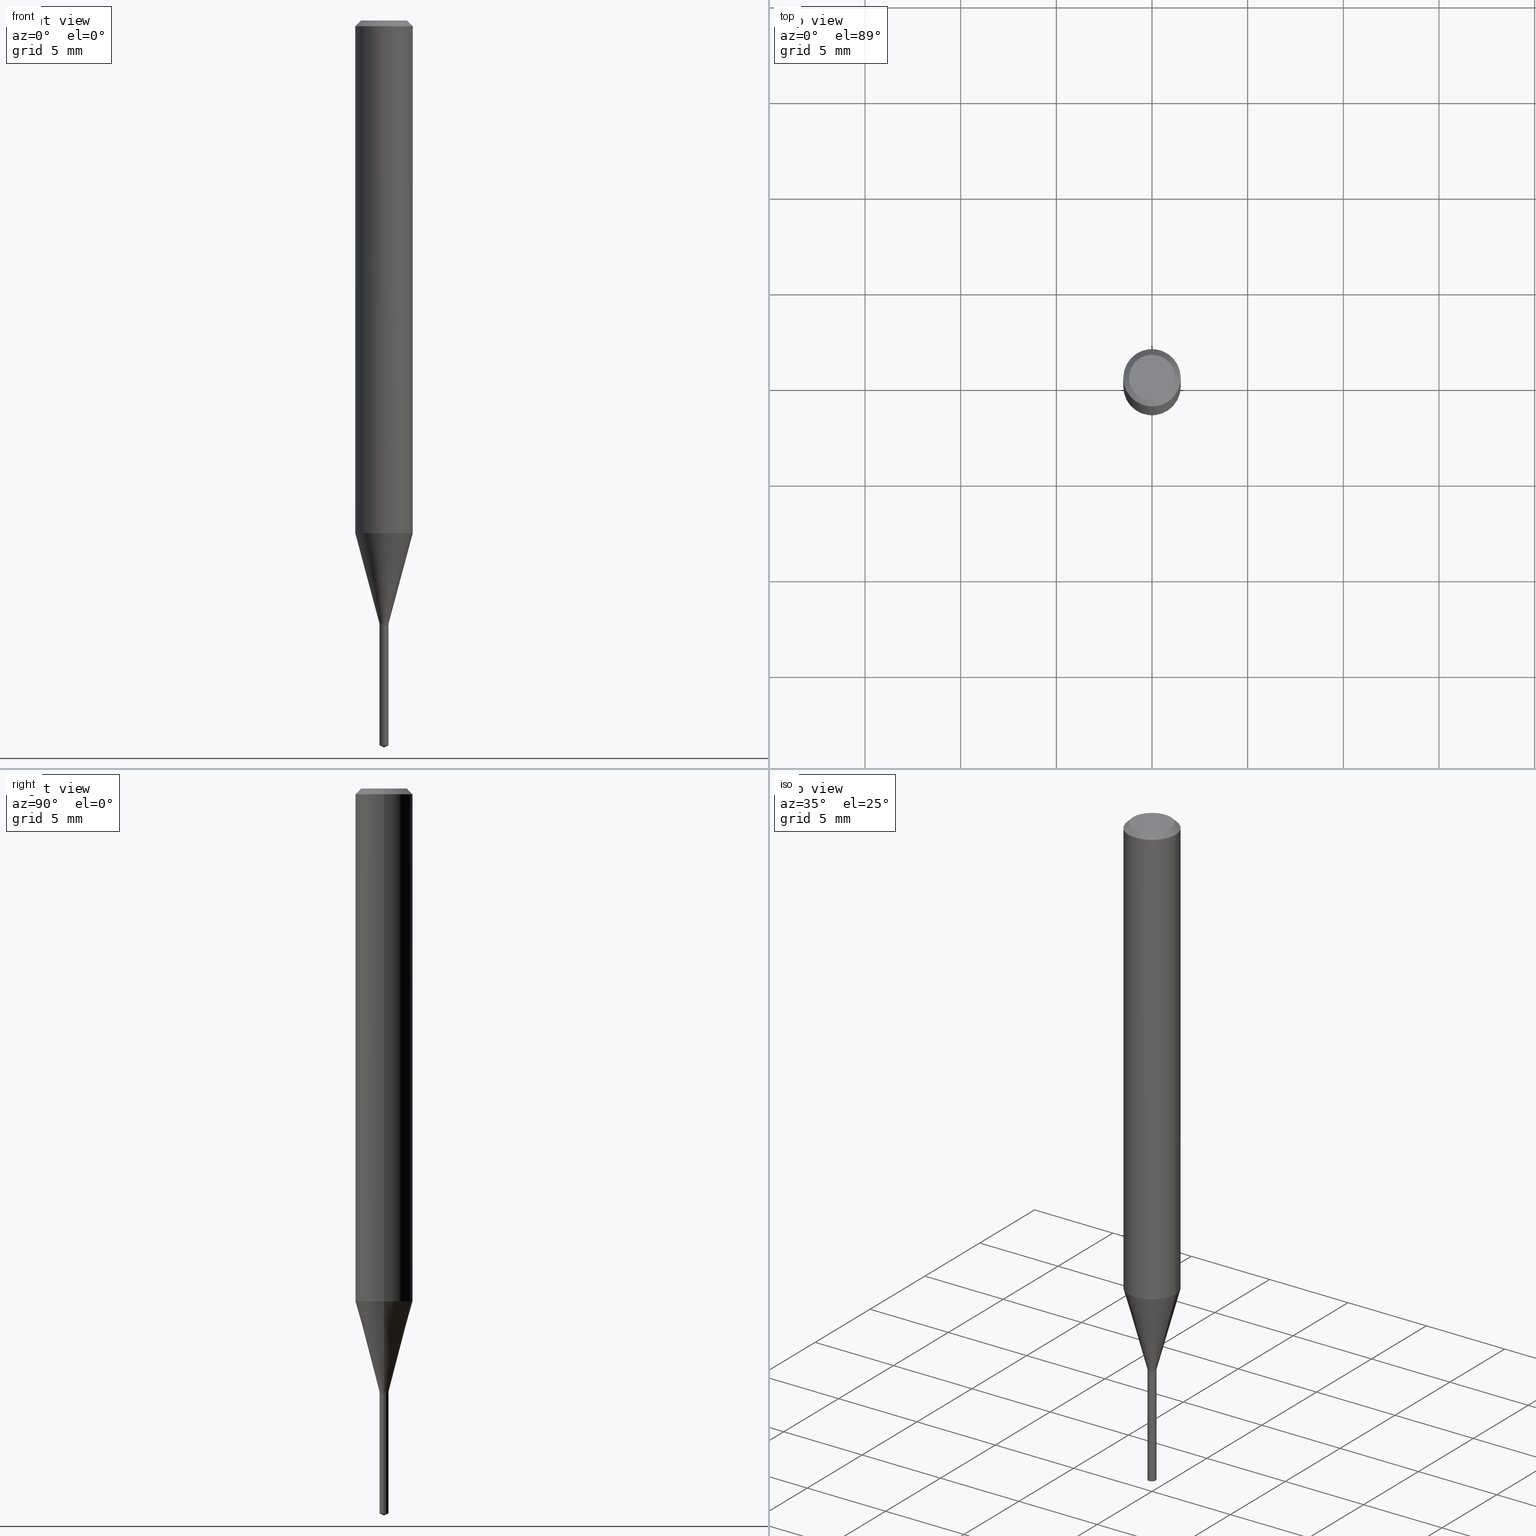
[diagram: canonical four-view strip — front | top / right | iso, engineering-drawing reading convention]
A machine part, canonical four-view strip (front | top / right | iso — engineering-drawing reading convention). The complete STEP part file that produces these views, byte-faithful:
ISO-10303-21;
HEADER;
FILE_DESCRIPTION (( 'STEP AP203' ),
    '1' );
FILE_NAME ('07766.STEP',
    '2024-04-24T02:34:44',
    ( '' ),
    ( '' ),
    'SwSTEP 2.0',
    'SolidWorks 2023',
    '' );
FILE_SCHEMA (( 'CONFIG_CONTROL_DESIGN' ));
ENDSEC;

DATA;
#1 = APPLICATION_PROTOCOL_DEFINITION ( 'international standard', 'config_control_design', 1994, #193 ) ;
#2 = AXIS2_PLACEMENT_3D ( 'NONE', #254, #369, #262 ) ;
#3 = AXIS2_PLACEMENT_3D ( 'NONE', #228, #41, #56 ) ;
#4 = EDGE_LOOP ( 'NONE', ( #162, #345, #50, #418 ) ) ;
#5 = CARTESIAN_POINT ( 'NONE',  ( -0.009249999999999999542, -4.272265786387857456E-15, -1.241299999999999848 ) ) ;
#6 = ORIENTED_EDGE ( 'NONE', *, *, #173, .F. ) ;
#7 = ORIENTED_EDGE ( 'NONE', *, *, #110, .F. ) ;
#8 = ADVANCED_FACE ( 'NONE', ( #394 ), #296, .T. ) ;
#9 = APPROVAL_STATUS ( 'not_yet_approved' ) ;
#10 = VERTEX_POINT ( 'NONE', #476 ) ;
#11 = AXIS2_PLACEMENT_3D ( 'NONE', #163, #364, #138 ) ;
#12 = DIRECTION ( 'NONE',  ( -2.445453018118844278E-29, 3.491503948252676363E-15, 1.000000000000000000 ) ) ;
#13 = ORIENTED_EDGE ( 'NONE', *, *, #278, .F. ) ;
#14 = EDGE_CURVE ( 'NONE', #437, #460, #58, .T. ) ;
#15 = DIRECTION ( 'NONE',  ( -2.438088387897960049E-29, 3.491481338843145188E-15, 1.000000000000000000 ) ) ;
#16 = FACE_OUTER_BOUND ( 'NONE', #379, .T. ) ;
#17 = CARTESIAN_POINT ( 'NONE',  ( 3.042407741774928155E-29, -4.343751933654757151E-15, -1.244099999999999984 ) ) ;
#18 = EDGE_LOOP ( 'NONE', ( #269, #57, #229, #434 ) ) ;
#19 = ORIENTED_EDGE ( 'NONE', *, *, #365, .F. ) ;
#20 = CARTESIAN_POINT ( 'NONE',  ( 4.132873053354867254E-48, -5.900647395337818946E-34, -1.690012582823346072E-19 ) ) ;
#21 = ORIENTED_EDGE ( 'NONE', *, *, #410, .F. ) ;
#22 = VECTOR ( 'NONE', #101, 39.37007874015748143 ) ;
#23 = CYLINDRICAL_SURFACE ( 'NONE', #462, 0.05905000000000006771 ) ;
#24 = AXIS2_PLACEMENT_3D ( 'NONE', #191, #146, #370 ) ;
#25 = DIRECTION ( 'NONE',  ( -2.445468806185136597E-29, 3.491481338843145583E-15, 1.000000000000000000 ) ) ;
#26 = DIRECTION ( 'NONE',  ( -0.2588190451025211836, 5.211531920934547886E-15, 0.9659258262890679791 ) ) ;
#27 = ADVANCED_FACE ( 'NONE', ( #330 ), #303, .T. ) ;
#28 = FACE_OUTER_BOUND ( 'NONE', #194, .T. ) ;
#29 = DIRECTION ( 'NONE',  ( 1.000000000000000000, 0.000000000000000000, 0.000000000000000000 ) ) ;
#30 = CARTESIAN_POINT ( 'NONE',  ( 0.05905000000000006771, -4.123439461173745257E-16, 2.879382386107503723E-30 ) ) ;
#31 = PERSON_AND_ORGANIZATION_ROLE ( 'creator' ) ;
#32 = AXIS2_PLACEMENT_3D ( 'NONE', #482, #15, #480 ) ;
#33 = CARTESIAN_POINT ( 'NONE',  ( 0.05904999999999999832, -4.535783407291118600E-16, -0.01181000000000007218 ) ) ;
#34 = EDGE_CURVE ( 'NONE', #427, #231, #97, .T. ) ;
#35 = CARTESIAN_POINT ( 'NONE',  ( 3.042407741774928155E-29, -4.343751933654757151E-15, -1.244099999999999984 ) ) ;
#36 = DIRECTION ( 'NONE',  ( 1.000000000000000000, -6.982962677686254089E-15, 0.000000000000000000 ) ) ;
#37 = CARTESIAN_POINT ( 'NONE',  ( 0.04724000000000000421, -3.852183633974369345E-16, -3.380025165621689721E-19 ) ) ;
#38 = ORIENTED_EDGE ( 'NONE', *, *, #381, .T. ) ;
#39 = CALENDAR_DATE ( 2024, 23, 4 ) ;
#40 = AXIS2_PLACEMENT_3D ( 'NONE', #20, #172, #328 ) ;
#41 = DIRECTION ( 'NONE',  ( -2.445453018118844559E-29, 3.491503948252676758E-15, 1.000000000000000000 ) ) ;
#42 = VECTOR ( 'NONE', #12, 39.37007874015748143 ) ;
#43 = ORIENTED_EDGE ( 'NONE', *, *, #410, .T. ) ;
#44 = EDGE_CURVE ( 'NONE', #237, #91, #255, .T. ) ;
#45 = ORIENTED_EDGE ( 'NONE', *, *, #221, .T. ) ;
#46 = DATE_TIME_ROLE ( 'classification_date' ) ;
#47 = ORIENTED_EDGE ( 'NONE', *, *, #344, .T. ) ;
#48 = PERSON_AND_ORGANIZATION_ROLE ( 'creator' ) ;
#49 = AXIS2_PLACEMENT_3D ( 'NONE', #338, #490, #107 ) ;
#50 = ORIENTED_EDGE ( 'NONE', *, *, #242, .F. ) ;
#51 = APPROVAL_PERSON_ORGANIZATION ( #52, #263, #274 ) ;
#52 = PERSON_AND_ORGANIZATION ( #279, #390 ) ;
#53 = EDGE_CURVE ( 'NONE', #91, #237, #246, .T. ) ;
#54 = DIRECTION ( 'NONE',  ( -2.445468806185136597E-29, 3.491481338843145583E-15, 1.000000000000000000 ) ) ;
#55 = DIRECTION ( 'NONE',  ( 6.982962677686265922E-15, 1.000000000000000000, -3.491503948252676363E-15 ) ) ;
#56 = DIRECTION ( 'NONE',  ( -6.982962677686266711E-15, -1.000000000000000000, 0.000000000000000000 ) ) ;
#57 = ORIENTED_EDGE ( 'NONE', *, *, #53, .T. ) ;
#58 = LINE ( 'NONE', #285, #358 ) ;
#59 = AXIS2_PLACEMENT_3D ( 'NONE', #398, #392, #430 ) ;
#60 = AXIS2_PLACEMENT_3D ( 'NONE', #179, #219, #126 ) ;
#61 = ORIENTED_EDGE ( 'NONE', *, *, #258, .F. ) ;
#62 = ADVANCED_FACE ( 'NONE', ( #355 ), #320, .F. ) ;
#63 = VERTEX_POINT ( 'NONE', #205 ) ;
#64 = DIRECTION ( 'NONE',  ( 1.000000000000000000, -6.982962677686306154E-15, 0.000000000000000000 ) ) ;
#65 = DIRECTION ( 'NONE',  ( 2.445468806185136597E-29, -3.491481338843145583E-15, -1.000000000000000000 ) ) ;
#66 = VECTOR ( 'NONE', #411, 39.37007874015748854 ) ;
#67 = CIRCLE ( 'NONE', #226, 0.05904999999999999832 ) ;
#68 = DIRECTION ( 'NONE',  ( 6.439704144417007476E-15, 0.9063077870366490485, 0.4226182617407009956 ) ) ;
#69 = ADVANCED_FACE ( 'NONE', ( #16 ), #469, .F. ) ;
#70 = FACE_OUTER_BOUND ( 'NONE', #346, .T. ) ;
#71 = CARTESIAN_POINT ( 'NONE',  ( -6.459240476856754120E-17, -0.009250000000004345024, -1.244099999999999984 ) ) ;
#72 = DIRECTION ( 'NONE',  ( 2.445468806185136597E-29, -3.491481338843145583E-15, -1.000000000000000000 ) ) ;
#73 = APPROVAL_STATUS ( 'not_yet_approved' ) ;
#74 = LINE ( 'NONE', #443, #238 ) ;
#75 = AXIS2_PLACEMENT_3D ( 'NONE', #93, #165, #334 ) ;
#76 = CARTESIAN_POINT ( 'NONE',  ( 0.000000000000000000, 0.000000000000000000, 0.000000000000000000 ) ) ;
#77 = DIRECTION ( 'NONE',  ( -2.445468806185136877E-29, 3.491481338843145188E-15, 1.000000000000000000 ) ) ;
#78 = ORIENTED_EDGE ( 'NONE', *, *, #350, .T. ) ;
#79 = APPROVAL_DATE_TIME ( #417, #82 ) ;
#80 = ORIENTED_EDGE ( 'NONE', *, *, #221, .F. ) ;
#81 = PERSON_AND_ORGANIZATION_ROLE ( 'design_owner' ) ;
#82 = APPROVAL ( #73, 'UNSPECIFIED' ) ;
#83 = VECTOR ( 'NONE', #298, 39.37007874015748143 ) ;
#84 = ORIENTED_EDGE ( 'NONE', *, *, #489, .T. ) ;
#85 = ORIENTED_EDGE ( 'NONE', *, *, #344, .F. ) ;
#86 = EDGE_LOOP ( 'NONE', ( #234, #170 ) ) ;
#87 = ADVANCED_FACE ( 'NONE', ( #440 ), #100, .T. ) ;
#88 = PERSON_AND_ORGANIZATION_ROLE ( 'classification_officer' ) ;
#89 = DIRECTION ( 'NONE',  ( -2.445468806185136597E-29, 3.491481338843145583E-15, 1.000000000000000000 ) ) ;
#90 = CIRCLE ( 'NONE', #3, 0.009249999999999999542 ) ;
#91 = VERTEX_POINT ( 'NONE', #148 ) ;
#92 = COORDINATED_UNIVERSAL_TIME_OFFSET ( 5, 0, .BEHIND. ) ;
#93 = CARTESIAN_POINT ( 'NONE',  ( 8.265746106709734507E-48, -1.180129479067563789E-33, -3.380025165646692144E-19 ) ) ;
#94 = EDGE_LOOP ( 'NONE', ( #155, #212, #436 ) ) ;
#95 = ORIENTED_EDGE ( 'NONE', *, *, #34, .F. ) ;
#96 = EDGE_CURVE ( 'NONE', #116, #245, #225, .T. ) ;
#97 = LINE ( 'NONE', #208, #421 ) ;
#98 = CONICAL_SURFACE ( 'NONE', #322, 0.05904999999999999832, 0.7853981633974452814 ) ;
#99 = CIRCLE ( 'NONE', #75, 0.04724000000000000421 ) ;
#100 = CYLINDRICAL_SURFACE ( 'NONE', #158, 0.009249999999999999542 ) ;
#101 = DIRECTION ( 'NONE',  ( -0.7071067811866191821, 7.493145998870612907E-15, 0.7071067811864758523 ) ) ;
#102 = CARTESIAN_POINT ( 'NONE',  ( 3.042407741774928155E-29, -4.343751933654757151E-15, -1.244099999999999984 ) ) ;
#103 = DIRECTION ( 'NONE',  ( -2.445453018118844559E-29, 3.491503948252676758E-15, 1.000000000000000000 ) ) ;
#104 = CARTESIAN_POINT ( 'NONE',  ( 0.008749999999999999098, -4.404852857084512143E-15, -1.244099999999999984 ) ) ;
#105 = VECTOR ( 'NONE', #373, 39.37007874015748143 ) ;
#106 = DIRECTION ( 'NONE',  ( 1.000000000000000000, -6.982962677686264344E-15, 0.000000000000000000 ) ) ;
#107 = DIRECTION ( 'NONE',  ( 1.000000000000000000, -6.982962677686266711E-15, 4.876176775795935232E-29 ) ) ;
#108 = DIRECTION ( 'NONE',  ( -2.445468806185136597E-29, 3.491481338843145583E-15, 1.000000000000000000 ) ) ;
#109 =( CONVERSION_BASED_UNIT ( 'INCH', #339 ) LENGTH_UNIT ( ) NAMED_UNIT ( #145 ) );
#110 = EDGE_CURVE ( 'NONE', #63, #460, #215, .T. ) ;
#111 = DIRECTION ( 'NONE',  ( -6.982962677686268288E-15, -1.000000000000000000, 3.520397390770518557E-15 ) ) ;
#112 = LINE ( 'NONE', #299, #366 ) ;
#113 = CIRCLE ( 'NONE', #247, 0.04724000000000000421 ) ;
#114 = CC_DESIGN_SECURITY_CLASSIFICATION ( #305, ( #342 ) ) ;
#115 = DIRECTION ( 'NONE',  ( 0.000000000000000000, 0.000000000000000000, 1.000000000000000000 ) ) ;
#116 = VERTEX_POINT ( 'NONE', #104 ) ;
#117 = EDGE_CURVE ( 'NONE', #91, #249, #74, .T. ) ;
#118 = ORIENTED_EDGE ( 'NONE', *, *, #53, .F. ) ;
#119 = AXIS2_PLACEMENT_3D ( 'NONE', #177, #243, #429 ) ;
#120 = ORIENTED_EDGE ( 'NONE', *, *, #375, .T. ) ;
#121 = ADVANCED_FACE ( 'NONE', ( #28 ), #396, .T. ) ;
#122 = ORIENTED_EDGE ( 'NONE', *, *, #365, .T. ) ;
#123 = DIRECTION ( 'NONE',  ( 1.000000000000000000, -6.982962677686250144E-15, 0.000000000000000000 ) ) ;
#124 = ORIENTED_EDGE ( 'NONE', *, *, #332, .T. ) ;
#125 = DESIGN_CONTEXT ( 'detailed design', #475, 'design' ) ;
#126 = DIRECTION ( 'NONE',  ( 1.000000000000000000, -6.982962677686266711E-15, 0.000000000000000000 ) ) ;
#127 = AXIS2_PLACEMENT_3D ( 'NONE', #403, #65, #367 ) ;
#128 = CC_DESIGN_APPROVAL ( #263, ( #342 ) ) ;
#129 = ORIENTED_EDGE ( 'NONE', *, *, #470, .F. ) ;
#130 = DIRECTION ( 'NONE',  ( -6.982962677686265133E-15, -1.000000000000000000, 0.000000000000000000 ) ) ;
#131 = ADVANCED_FACE ( 'NONE', ( #336 ), #98, .T. ) ;
#132 = ORIENTED_EDGE ( 'NONE', *, *, #426, .T. ) ;
#133 = ORIENTED_EDGE ( 'NONE', *, *, #34, .T. ) ;
#134 = CONICAL_SURFACE ( 'NONE', #414, 0.009249999999999999542, 0.2617993877991499074 ) ;
#135 = CARTESIAN_POINT ( 'NONE',  ( 3.041185007371835914E-29, -4.342006192985336437E-15, -1.243600000000000039 ) ) ;
#136 = ADVANCED_FACE ( 'NONE', ( #406 ), #286, .T. ) ;
#137 = CARTESIAN_POINT ( 'NONE',  ( 3.648113817743311511E-29, -5.208550864591106219E-15, -1.491786654162066128 ) ) ;
#138 = DIRECTION ( 'NONE',  ( 1.000000000000000000, -6.982962677686264344E-15, 0.000000000000000000 ) ) ;
#139 = FACE_OUTER_BOUND ( 'NONE', #277, .T. ) ;
#140 = CARTESIAN_POINT ( 'NONE',  ( -0.05904999999999999832, -1.443572999611519884E-15, -0.01181000000000007218 ) ) ;
#141 = AXIS2_PLACEMENT_3D ( 'NONE', #239, #404, #106 ) ;
#142 = DIRECTION ( 'NONE',  ( -0.7071067811865453523, 2.468850131082234184E-15, -0.7071067811865496822 ) ) ;
#143 = CARTESIAN_POINT ( 'NONE',  ( -0.05905000000000006771, 4.195754854663396409E-16, -2.904631170795525045E-30 ) ) ;
#144 = CC_DESIGN_DATE_AND_TIME_ASSIGNMENT ( #463, #46, ( #305 ) ) ;
#145 = DIMENSIONAL_EXPONENTS ( 1.000000000000000000, 0.000000000000000000, 0.000000000000000000, 0.000000000000000000, 0.000000000000000000, 0.000000000000000000, 0.000000000000000000 ) ;
#146 = DIRECTION ( 'NONE',  ( -2.445468806185136597E-29, 3.491481338843145583E-15, 1.000000000000000000 ) ) ;
#147 = ADVANCED_FACE ( 'NONE', ( #70 ), #449, .T. ) ;
#148 = CARTESIAN_POINT ( 'NONE',  ( 6.572520305784574876E-17, 0.009249999999994791902, -1.491786654162066128 ) ) ;
#149 = CARTESIAN_POINT ( 'NONE',  ( 0.000000000000000000, 0.000000000000000000, 0.000000000000000000 ) ) ;
#150 = CARTESIAN_POINT ( 'NONE',  ( 3.042407741774928155E-29, -4.343751933654757151E-15, -1.244099999999999984 ) ) ;
#151 = AXIS2_PLACEMENT_3D ( 'NONE', #356, #103, #402 ) ;
#152 = ADVANCED_FACE ( 'NONE', ( #261 ), #134, .T. ) ;
#153 = VERTEX_POINT ( 'NONE', #178 ) ;
#154 = DIRECTION ( 'NONE',  ( -2.445453018118844559E-29, 3.491503948252676758E-15, 1.000000000000000000 ) ) ;
#155 = ORIENTED_EDGE ( 'NONE', *, *, #381, .F. ) ;
#156 = APPROVAL_DATE_TIME ( #348, #220 ) ;
#157 = EDGE_LOOP ( 'NONE', ( #95, #385, #362, #124 ) ) ;
#158 = AXIS2_PLACEMENT_3D ( 'NONE', #102, #290, #371 ) ;
#159 = ORIENTED_EDGE ( 'NONE', *, *, #250, .F. ) ;
#160 = CC_DESIGN_PERSON_AND_ORGANIZATION_ASSIGNMENT ( #321, #48, ( #342 ) ) ;
#161 = LINE ( 'NONE', #466, #329 ) ;
#162 = ORIENTED_EDGE ( 'NONE', *, *, #44, .T. ) ;
#163 = CARTESIAN_POINT ( 'NONE',  ( 2.581055060233824275E-29, -3.685062575543982998E-15, -1.055443869783069699 ) ) ;
#164 = DIRECTION ( 'NONE',  ( 0.7071067811865453523, -7.319954787623248157E-15, -0.7071067811865496822 ) ) ;
#165 = DIRECTION ( 'NONE',  ( -2.445468806185136597E-29, 3.491481338843145583E-15, 1.000000000000000000 ) ) ;
#166 = CLOSED_SHELL ( 'NONE', ( #27, #136, #361, #300, #147, #189, #152, #199, #131, #69, #400, #8 ) ) ;
#167 = CIRCLE ( 'NONE', #397, 0.008749999999999999098 ) ;
#168 = ORIENTED_EDGE ( 'NONE', *, *, #211, .F. ) ;
#169 = PRODUCT_DEFINITION ( 'UNKNOWN', '', #342, #125 ) ;
#170 = ORIENTED_EDGE ( 'NONE', *, *, #293, .F. ) ;
#171 = CC_DESIGN_PERSON_AND_ORGANIZATION_ASSIGNMENT ( #203, #88, ( #305 ) ) ;
#172 = DIRECTION ( 'NONE',  ( 2.438088387897960049E-29, -3.491481338843145188E-15, -1.000000000000000000 ) ) ;
#173 = EDGE_CURVE ( 'NONE', #116, #268, #413, .T. ) ;
#174 = DIRECTION ( 'NONE',  ( -2.445468806185136597E-29, 3.491481338843145583E-15, 1.000000000000000000 ) ) ;
#175 = AXIS2_PLACEMENT_3D ( 'NONE', #180, #335, #445 ) ;
#176 = LOCAL_TIME ( 22, 34, 44.00000000000000000, #92 ) ;
#177 = CARTESIAN_POINT ( 'NONE',  ( 3.041185007371835914E-29, -4.342006192985336437E-15, -1.243600000000000039 ) ) ;
#178 = CARTESIAN_POINT ( 'NONE',  ( -0.05905000000000013710, -3.265487090077642716E-15, -1.055443869783069699 ) ) ;
#179 = CARTESIAN_POINT ( 'NONE',  ( 2.888098660104664204E-31, -4.123439461173780263E-17, -0.01181000000000007218 ) ) ;
#180 = CARTESIAN_POINT ( 'NONE',  ( 3.042407741774928155E-29, -4.343751933654757151E-15, -1.244099999999999984 ) ) ;
#181 = FACE_OUTER_BOUND ( 'NONE', #18, .T. ) ;
#182 = DIRECTION ( 'NONE',  ( 1.000000000000000000, -6.982962677686266711E-15, 4.876176775795935232E-29 ) ) ;
#183 = EDGE_CURVE ( 'NONE', #63, #313, #333, .T. ) ;
#184 = CIRCLE ( 'NONE', #281, 0.009249999999999999542 ) ;
#185 = CARTESIAN_POINT ( 'NONE',  ( -9.261901597635378744E-28, 1.322371744356641908E-13, 37.87397874015748300 ) ) ;
#186 = CARTESIAN_POINT ( 'NONE',  ( -0.009249999999999999542, -4.272265786387857456E-15, -1.243600000000000039 ) ) ;
#187 = CARTESIAN_POINT ( 'NONE',  ( 0.008749999999999999098, -4.404852857084512143E-15, -1.244099999999999984 ) ) ;
#188 =( NAMED_UNIT ( * ) PLANE_ANGLE_UNIT ( ) SI_UNIT ( $, .RADIAN. ) );
#189 = ADVANCED_FACE ( 'NONE', ( #139 ), #452, .T. ) ;
#190 = VERTEX_POINT ( 'NONE', #481 ) ;
#191 = CARTESIAN_POINT ( 'NONE',  ( 3.035560429117610036E-29, -4.333975785905995943E-15, -1.241299999999999848 ) ) ;
#192 = LOCAL_TIME ( 22, 34, 44.00000000000000000, #232 ) ;
#193 = APPLICATION_CONTEXT ( 'configuration controlled 3d designs of mechanical parts and assemblies' ) ;
#194 = EDGE_LOOP ( 'NONE', ( #13, #38, #118 ) ) ;
#195 = CALENDAR_DATE ( 2024, 23, 4 ) ;
#196 = ORIENTED_EDGE ( 'NONE', *, *, #293, .T. ) ;
#197 = APPROVAL_ROLE ( '' ) ;
#198 = ORIENTED_EDGE ( 'NONE', *, *, #173, .T. ) ;
#199 = ADVANCED_FACE ( 'NONE', ( #340 ), #222, .T. ) ;
#200 = PERSON_AND_ORGANIZATION_ROLE ( 'design_supplier' ) ;
#201 = AXIS2_PLACEMENT_3D ( 'NONE', #149, #115, #29 ) ;
#202 = ORIENTED_EDGE ( 'NONE', *, *, #250, .T. ) ;
#203 = PERSON_AND_ORGANIZATION ( #279, #390 ) ;
#204 = DIRECTION ( 'NONE',  ( 1.000000000000000000, -6.982962677686266711E-15, 4.876185090822587894E-29 ) ) ;
#205 = CARTESIAN_POINT ( 'NONE',  ( 0.009249999999999999542, -4.398568190674593941E-15, -1.241299999999999848 ) ) ;
#206 = DATE_AND_TIME ( #39, #297 ) ;
#207 = CARTESIAN_POINT ( 'NONE',  ( 8.265746106709734507E-48, -1.180129479067563789E-33, -3.380025165646692144E-19 ) ) ;
#208 = CARTESIAN_POINT ( 'NONE',  ( 0.05904999999999999832, -4.463468013801466955E-16, -0.01181000000000007218 ) ) ;
#209 = ORIENTED_EDGE ( 'NONE', *, *, #464, .T. ) ;
#210 = CARTESIAN_POINT ( 'NONE',  ( 3.042407741774928155E-29, -4.343751933654757151E-15, -1.244099999999999984 ) ) ;
#211 = EDGE_CURVE ( 'NONE', #313, #231, #488, .T. ) ;
#212 = ORIENTED_EDGE ( 'NONE', *, *, #278, .T. ) ;
#213 = DIRECTION ( 'NONE',  ( -6.328713451373352024E-15, -0.9063077870366461619, 0.4226182617407073239 ) ) ;
#214 = DIRECTION ( 'NONE',  ( -2.445468806185136597E-29, 3.491481338843145583E-15, 1.000000000000000000 ) ) ;
#215 = CIRCLE ( 'NONE', #2, 0.009249999999999999542 ) ;
#216 = LOCAL_TIME ( 22, 34, 44.00000000000000000, #386 ) ;
#217 = CARTESIAN_POINT ( 'NONE',  ( -0.008749999999999999098, -4.278930217101637721E-15, -1.244099999999999984 ) ) ;
#218 = CARTESIAN_POINT ( 'NONE',  ( 3.035560429117610036E-29, -4.333975785905995943E-15, -1.241299999999999848 ) ) ;
#219 = DIRECTION ( 'NONE',  ( -2.445468806185136597E-29, 3.491481338843145583E-15, 1.000000000000000000 ) ) ;
#220 = APPROVAL ( #314, 'UNSPECIFIED' ) ;
#221 = EDGE_CURVE ( 'NONE', #153, #283, #486, .T. ) ;
#222 = CYLINDRICAL_SURFACE ( 'NONE', #382, 0.05905000000000006771 ) ;
#223 = COORDINATED_UNIVERSAL_TIME_OFFSET ( 5, 0, .BEHIND. ) ;
#224 = DIRECTION ( 'NONE',  ( -2.445468806185136877E-29, 3.491481338843145188E-15, 1.000000000000000000 ) ) ;
#225 = CIRCLE ( 'NONE', #175, 0.008749999999999999098 ) ;
#226 = AXIS2_PLACEMENT_3D ( 'NONE', #453, #412, #230 ) ;
#227 = CARTESIAN_POINT ( 'NONE',  ( 0.009249999999999999542, -6.459240476859796165E-17, 4.510463517611240048E-31 ) ) ;
#228 = CARTESIAN_POINT ( 'NONE',  ( 3.042407741774928155E-29, -4.343751933654757151E-15, -1.244099999999999984 ) ) ;
#229 = ORIENTED_EDGE ( 'NONE', *, *, #416, .T. ) ;
#230 = DIRECTION ( 'NONE',  ( 1.000000000000000000, -6.982962677686266711E-15, 0.000000000000000000 ) ) ;
#231 = VERTEX_POINT ( 'NONE', #33 ) ;
#232 = COORDINATED_UNIVERSAL_TIME_OFFSET ( 5, 0, .BEHIND. ) ;
#233 = VECTOR ( 'NONE', #213, 39.37007874015748854 ) ;
#234 = ORIENTED_EDGE ( 'NONE', *, *, #96, .F. ) ;
#235 = ORIENTED_EDGE ( 'NONE', *, *, #350, .F. ) ;
#236 = DATE_AND_TIME ( #471, #176 ) ;
#237 = VERTEX_POINT ( 'NONE', #454 ) ;
#238 = VECTOR ( 'NONE', #295, 39.37007874015748143 ) ;
#239 = CARTESIAN_POINT ( 'NONE',  ( 2.581055060233824275E-29, -3.685062575543982998E-15, -1.055443869783069699 ) ) ;
#240 = CARTESIAN_POINT ( 'NONE',  ( 3.042407741774928155E-29, -4.343751933654757151E-15, -1.244099999999999984 ) ) ;
#241 = PERSON_AND_ORGANIZATION ( #279, #390 ) ;
#242 = EDGE_CURVE ( 'NONE', #10, #249, #90, .T. ) ;
#243 = DIRECTION ( 'NONE',  ( -2.445468806185136597E-29, 3.491481338843145583E-15, 1.000000000000000000 ) ) ;
#244 = EDGE_LOOP ( 'NONE', ( #43, #45, #465, #168 ) ) ;
#245 = VERTEX_POINT ( 'NONE', #217 ) ;
#246 = CIRCLE ( 'NONE', #59, 0.009250000000000001277 ) ;
#247 = AXIS2_PLACEMENT_3D ( 'NONE', #207, #407, #204 ) ;
#248 = DIRECTION ( 'NONE',  ( -2.445453018118844559E-29, 3.491503948252676758E-15, 1.000000000000000000 ) ) ;
#249 = VERTEX_POINT ( 'NONE', #319 ) ;
#250 = EDGE_CURVE ( 'NONE', #153, #313, #359, .T. ) ;
#251 = FACE_OUTER_BOUND ( 'NONE', #94, .T. ) ;
#252 = CARTESIAN_POINT ( 'NONE',  ( 2.888098660104664204E-31, -4.123439461173780263E-17, -0.01181000000000007218 ) ) ;
#253 = DIRECTION ( 'NONE',  ( -2.445468806185136597E-29, 3.491481338843145583E-15, 1.000000000000000000 ) ) ;
#254 = CARTESIAN_POINT ( 'NONE',  ( 3.035560429117610036E-29, -4.333975785905995943E-15, -1.241299999999999848 ) ) ;
#255 = CIRCLE ( 'NONE', #270, 0.009250000000000001277 ) ;
#256 = AXIS2_PLACEMENT_3D ( 'NONE', #294, #282, #468 ) ;
#257 = DIRECTION ( 'NONE',  ( 1.000000000000000000, -6.982962677686266711E-15, 4.876176775795936353E-29 ) ) ;
#258 = EDGE_CURVE ( 'NONE', #245, #437, #444, .T. ) ;
#259 = CARTESIAN_POINT ( 'NONE',  ( 0.009249999999999999542, -4.398568190674593941E-15, -1.241299999999999848 ) ) ;
#260 =( LENGTH_UNIT ( ) NAMED_UNIT ( * ) SI_UNIT ( $, .METRE. ) );
#261 = FACE_OUTER_BOUND ( 'NONE', #307, .T. ) ;
#262 = DIRECTION ( 'NONE',  ( 1.000000000000000000, -6.982962677686254089E-15, 0.000000000000000000 ) ) ;
#263 = APPROVAL ( #9, 'UNSPECIFIED' ) ;
#264 = AXIS2_PLACEMENT_3D ( 'NONE', #185, #377, #111 ) ;
#265 = LOCAL_TIME ( 22, 34, 44.00000000000000000, #223 ) ;
#266 = MANIFOLD_SOLID_BREP ( 'Body-Move/Copy2[1]', #337 ) ;
#267 = DIRECTION ( 'NONE',  ( -2.445453018118844559E-29, 3.491503948252676758E-15, 1.000000000000000000 ) ) ;
#268 = VERTEX_POINT ( 'NONE', #391 ) ;
#269 = ORIENTED_EDGE ( 'NONE', *, *, #117, .F. ) ;
#270 = AXIS2_PLACEMENT_3D ( 'NONE', #137, #248, #130 ) ;
#271 = VECTOR ( 'NONE', #26, 39.37007874015748854 ) ;
#272 = CC_DESIGN_DATE_AND_TIME_ASSIGNMENT ( #206, #428, ( #169 ) ) ;
#273 = ORIENTED_EDGE ( 'NONE', *, *, #183, .F. ) ;
#274 = APPROVAL_ROLE ( '' ) ;
#275 = EDGE_LOOP ( 'NONE', ( #80, #202, #310, #360 ) ) ;
#276 = CARTESIAN_POINT ( 'NONE',  ( 0.05905000000000013710, -4.097406521661357129E-15, -1.055443869783069699 ) ) ;
#277 = EDGE_LOOP ( 'NONE', ( #383, #122, #132, #284 ) ) ;
#278 = EDGE_CURVE ( 'NONE', #190, #91, #161, .T. ) ;
#279 = PERSON ( 'UNSPECIFIED', 'UNSPECIFIED', 'UNSPECIFIED', ('UNSPECIFIED'), ('UNSPECIFIED'), ('UNSPECIFIED') ) ;
#280 = AXIS2_PLACEMENT_3D ( 'NONE', #408, #214, #182 ) ;
#281 = AXIS2_PLACEMENT_3D ( 'NONE', #135, #54, #64 ) ;
#282 = DIRECTION ( 'NONE',  ( -2.445468806185136597E-29, 3.491481338843145583E-15, 1.000000000000000000 ) ) ;
#283 = VERTEX_POINT ( 'NONE', #140 ) ;
#284 = ORIENTED_EDGE ( 'NONE', *, *, #435, .F. ) ;
#285 = CARTESIAN_POINT ( 'NONE',  ( -0.009249999999999999542, 6.572520305780926394E-17, -4.550014958485787295E-31 ) ) ;
#286 = CONICAL_SURFACE ( 'NONE', #127, 0.05904999999999999832, 0.7853981633974452814 ) ;
#287 = CIRCLE ( 'NONE', #438, 0.009249999999999999542 ) ;
#288 = CARTESIAN_POINT ( 'NONE',  ( 3.042407741774928155E-29, -4.343751933654757151E-15, -1.244099999999999984 ) ) ;
#289 = LINE ( 'NONE', #393, #233 ) ;
#290 = DIRECTION ( 'NONE',  ( -2.445453018118844559E-29, 3.491503948252676758E-15, 1.000000000000000000 ) ) ;
#291 = FACE_OUTER_BOUND ( 'NONE', #325, .T. ) ;
#292 = DIRECTION ( 'NONE',  ( 1.000000000000000000, -6.982962677686266711E-15, 4.876176775795936353E-29 ) ) ;
#293 = EDGE_CURVE ( 'NONE', #245, #116, #167, .T. ) ;
#294 = CARTESIAN_POINT ( 'NONE',  ( 3.035560429117610036E-29, -4.333975785905995943E-15, -1.241299999999999848 ) ) ;
#295 = DIRECTION ( 'NONE',  ( -2.445453018118844278E-29, 3.491503948252676363E-15, 1.000000000000000000 ) ) ;
#296 = CONICAL_SURFACE ( 'NONE', #484, 0.008749999999999999098, 0.7853981633975496424 ) ;
#297 = LOCAL_TIME ( 22, 34, 44.00000000000000000, #380 ) ;
#298 = DIRECTION ( 'NONE',  ( -2.445468806185136877E-29, 3.491481338843145188E-15, 1.000000000000000000 ) ) ;
#299 = CARTESIAN_POINT ( 'NONE',  ( -0.05904999999999999832, 3.711095515056362547E-16, -0.01181000000000007218 ) ) ;
#300 = ADVANCED_FACE ( 'NONE', ( #291 ), #457, .T. ) ;
#301 = DIRECTION ( 'NONE',  ( -1.000000000000000000, 6.982962677686266711E-15, 0.000000000000000000 ) ) ;
#302 = DIRECTION ( 'NONE',  ( -6.982962677686266711E-15, -1.000000000000000000, 0.000000000000000000 ) ) ;
#303 = CONICAL_SURFACE ( 'NONE', #431, 0.008749999999999999098, 0.7853981633975496424 ) ;
#304 = CIRCLE ( 'NONE', #11, 0.05905000000000013710 ) ;
#305 = SECURITY_CLASSIFICATION ( '', '', #424 ) ;
#306 = APPROVAL_ROLE ( '' ) ;
#307 = EDGE_LOOP ( 'NONE', ( #309, #341, #422, #159 ) ) ;
#308 =( NAMED_UNIT ( * ) SI_UNIT ( $, .STERADIAN. ) SOLID_ANGLE_UNIT ( ) );
#309 = ORIENTED_EDGE ( 'NONE', *, *, #315, .F. ) ;
#310 = ORIENTED_EDGE ( 'NONE', *, *, #211, .T. ) ;
#311 = SHAPE_DEFINITION_REPRESENTATION ( #441, #401 ) ;
#312 = CIRCLE ( 'NONE', #60, 0.05904999999999999832 ) ;
#313 = VERTEX_POINT ( 'NONE', #276 ) ;
#314 = APPROVAL_STATUS ( 'not_yet_approved' ) ;
#315 = EDGE_CURVE ( 'NONE', #460, #153, #368, .T. ) ;
#316 = CARTESIAN_POINT ( 'NONE',  ( -0.008749999999999999098, -4.281579444275748922E-15, -1.244099999999999984 ) ) ;
#317 = ORIENTED_EDGE ( 'NONE', *, *, #242, .T. ) ;
#318 = PERSON_AND_ORGANIZATION ( #279, #390 ) ;
#319 = CARTESIAN_POINT ( 'NONE',  ( 6.572520305784577341E-17, 0.009249999999995654060, -1.244099999999999984 ) ) ;
#320 = PLANE ( 'NONE',  #349 ) ;
#321 = PERSON_AND_ORGANIZATION ( #279, #390 ) ;
#322 = AXIS2_PLACEMENT_3D ( 'NONE', #252, #72, #301 ) ;
#323 = VECTOR ( 'NONE', #77, 39.37007874015748143 ) ;
#324 = CARTESIAN_POINT ( 'NONE',  ( -0.04724000000000000421, 3.504923541997677355E-16, -3.380025165670481712E-19 ) ) ;
#325 = EDGE_LOOP ( 'NONE', ( #326, #347, #21, #273 ) ) ;
#326 = ORIENTED_EDGE ( 'NONE', *, *, #110, .T. ) ;
#327 = ADVANCED_FACE ( 'NONE', ( #251 ), #448, .T. ) ;
#328 = DIRECTION ( 'NONE',  ( -1.000000000000000000, 6.982962677686265922E-15, -4.876176775795935793E-29 ) ) ;
#329 = VECTOR ( 'NONE', #68, 39.37007874015748854 ) ;
#330 = FACE_OUTER_BOUND ( 'NONE', #459, .T. ) ;
#331 = CARTESIAN_POINT ( 'NONE',  ( -0.009249999999999999542, -4.268250582848186814E-15, -1.241299999999999848 ) ) ;
#332 = EDGE_CURVE ( 'NONE', #283, #231, #312, .T. ) ;
#333 = LINE ( 'NONE', #259, #66 ) ;
#334 = DIRECTION ( 'NONE',  ( 1.000000000000000000, -6.982962677686266711E-15, 4.876185090822587894E-29 ) ) ;
#335 = DIRECTION ( 'NONE',  ( -2.445468806185136597E-29, 3.491481338843145583E-15, 1.000000000000000000 ) ) ;
#336 = FACE_OUTER_BOUND ( 'NONE', #157, .T. ) ;
#337 = CLOSED_SHELL ( 'NONE', ( #87, #327, #121, #439, #62 ) ) ;
#338 = CARTESIAN_POINT ( 'NONE',  ( 0.000000000000000000, 0.000000000000000000, 0.000000000000000000 ) ) ;
#339 = LENGTH_MEASURE_WITH_UNIT ( LENGTH_MEASURE( 0.02539999999999999897 ), #260 );
#340 = FACE_OUTER_BOUND ( 'NONE', #275, .T. ) ;
#341 = ORIENTED_EDGE ( 'NONE', *, *, #435, .T. ) ;
#342 = PRODUCT_DEFINITION_FORMATION_WITH_SPECIFIED_SOURCE ( 'ANY', '', #451, .NOT_KNOWN. ) ;
#343 = CYLINDRICAL_SURFACE ( 'NONE', #351, 0.009249999999999999542 ) ;
#344 = EDGE_CURVE ( 'NONE', #427, #387, #99, .T. ) ;
#345 = ORIENTED_EDGE ( 'NONE', *, *, #117, .T. ) ;
#346 = EDGE_LOOP ( 'NONE', ( #78, #352, #7, #423 ) ) ;
#347 = ORIENTED_EDGE ( 'NONE', *, *, #315, .T. ) ;
#348 = DATE_AND_TIME ( #195, #192 ) ;
#349 = AXIS2_PLACEMENT_3D ( 'NONE', #210, #477, #55 ) ;
#350 = EDGE_CURVE ( 'NONE', #268, #437, #485, .T. ) ;
#351 = AXIS2_PLACEMENT_3D ( 'NONE', #150, #267, #376 ) ;
#352 = ORIENTED_EDGE ( 'NONE', *, *, #14, .T. ) ;
#353 = CALENDAR_DATE ( 2024, 23, 4 ) ;
#354 = PLANE ( 'NONE',  #32 ) ;
#355 = FACE_OUTER_BOUND ( 'NONE', #389, .T. ) ;
#356 = CARTESIAN_POINT ( 'NONE',  ( -9.261901597635378744E-28, 1.322371744356641908E-13, 37.87397874015748300 ) ) ;
#357 = DIRECTION ( 'NONE',  ( -2.445468806185136597E-29, 3.491481338843145583E-15, 1.000000000000000000 ) ) ;
#358 = VECTOR ( 'NONE', #474, 39.37007874015748143 ) ;
#359 = CIRCLE ( 'NONE', #141, 0.05905000000000013710 ) ;
#360 = ORIENTED_EDGE ( 'NONE', *, *, #332, .F. ) ;
#361 = ADVANCED_FACE ( 'NONE', ( #433 ), #23, .T. ) ;
#362 = ORIENTED_EDGE ( 'NONE', *, *, #470, .T. ) ;
#363 = EDGE_LOOP ( 'NONE', ( #85, #133, #84, #129 ) ) ;
#364 = DIRECTION ( 'NONE',  ( -2.445468806185136597E-29, 3.491481338843145583E-15, 1.000000000000000000 ) ) ;
#365 = EDGE_CURVE ( 'NONE', #437, #268, #184, .T. ) ;
#366 = VECTOR ( 'NONE', #142, 39.37007874015748143 ) ;
#367 = DIRECTION ( 'NONE',  ( -1.000000000000000000, 6.982962677686266711E-15, 0.000000000000000000 ) ) ;
#368 = LINE ( 'NONE', #331, #271 ) ;
#369 = DIRECTION ( 'NONE',  ( -2.445468806185136597E-29, 3.491481338843145583E-15, 1.000000000000000000 ) ) ;
#370 = DIRECTION ( 'NONE',  ( 1.000000000000000000, -6.982962677686254089E-15, 0.000000000000000000 ) ) ;
#371 = DIRECTION ( 'NONE',  ( -6.982962677686266711E-15, -1.000000000000000000, 0.000000000000000000 ) ) ;
#372 = PERSON_AND_ORGANIZATION ( #279, #390 ) ;
#373 = DIRECTION ( 'NONE',  ( 0.7071067811866191821, -2.468850131083007662E-15, 0.7071067811864758523 ) ) ;
#374 = CIRCLE ( 'NONE', #24, 0.009249999999999999542 ) ;
#375 = EDGE_CURVE ( 'NONE', #387, #427, #113, .T. ) ;
#376 = DIRECTION ( 'NONE',  ( -6.982962677686266711E-15, -1.000000000000000000, 0.000000000000000000 ) ) ;
#377 = DIRECTION ( 'NONE',  ( -2.445453018118844559E-29, 3.491503948252676758E-15, 1.000000000000000000 ) ) ;
#378 = PERSON_AND_ORGANIZATION ( #279, #390 ) ;
#379 = EDGE_LOOP ( 'NONE', ( #120, #47 ) ) ;
#380 = COORDINATED_UNIVERSAL_TIME_OFFSET ( 5, 0, .BEHIND. ) ;
#381 = EDGE_CURVE ( 'NONE', #190, #237, #289, .T. ) ;
#382 = AXIS2_PLACEMENT_3D ( 'NONE', #76, #108, #292 ) ;
#383 = ORIENTED_EDGE ( 'NONE', *, *, #14, .F. ) ;
#384 = CC_DESIGN_APPROVAL ( #82, ( #169 ) ) ;
#385 = ORIENTED_EDGE ( 'NONE', *, *, #375, .F. ) ;
#386 = COORDINATED_UNIVERSAL_TIME_OFFSET ( 5, 0, .BEHIND. ) ;
#387 = VERTEX_POINT ( 'NONE', #324 ) ;
#388 = APPROVAL_DATE_TIME ( #236, #263 ) ;
#389 = EDGE_LOOP ( 'NONE', ( #317, #209 ) ) ;
#390 = ORGANIZATION ( 'UNSPECIFIED', 'UNSPECIFIED', '' ) ;
#391 = CARTESIAN_POINT ( 'NONE',  ( 0.009249999999999999542, -4.406598597753934435E-15, -1.243600000000000039 ) ) ;
#392 = DIRECTION ( 'NONE',  ( -2.445453018118844559E-29, 3.491503948252676758E-15, 1.000000000000000000 ) ) ;
#393 = CARTESIAN_POINT ( 'NONE',  ( 3.658642260407602849E-29, -5.223639056980828932E-15, -1.496099999999999985 ) ) ;
#394 = FACE_OUTER_BOUND ( 'NONE', #461, .T. ) ;
#395 = DIRECTION ( 'NONE',  ( 1.000000000000000000, -6.982962677686250144E-15, 0.000000000000000000 ) ) ;
#396 = CONICAL_SURFACE ( 'NONE', #264, 84.42940631927278616, 1.134464013796308901 ) ;
#397 = AXIS2_PLACEMENT_3D ( 'NONE', #17, #253, #123 ) ;
#398 = CARTESIAN_POINT ( 'NONE',  ( 3.648113817743311511E-29, -5.208550864591106219E-15, -1.491786654162066128 ) ) ;
#399 = ORIENTED_EDGE ( 'NONE', *, *, #258, .T. ) ;
#400 = ADVANCED_FACE ( 'NONE', ( #473 ), #354, .F. ) ;
#401 = ADVANCED_BREP_SHAPE_REPRESENTATION ( '07766', ( #266, #419, #201 ), #432 ) ;
#402 = DIRECTION ( 'NONE',  ( -6.982962677686268288E-15, -1.000000000000000000, 3.520397390770518557E-15 ) ) ;
#403 = CARTESIAN_POINT ( 'NONE',  ( 2.888098660104664204E-31, -4.123439461173780263E-17, -0.01181000000000007218 ) ) ;
#404 = DIRECTION ( 'NONE',  ( -2.445468806185136597E-29, 3.491481338843145583E-15, 1.000000000000000000 ) ) ;
#405 = APPROVAL_PERSON_ORGANIZATION ( #318, #220, #197 ) ;
#406 = FACE_OUTER_BOUND ( 'NONE', #363, .T. ) ;
#407 = DIRECTION ( 'NONE',  ( -2.445468806185136597E-29, 3.491481338843145583E-15, 1.000000000000000000 ) ) ;
#408 = CARTESIAN_POINT ( 'NONE',  ( 0.000000000000000000, 0.000000000000000000, 0.000000000000000000 ) ) ;
#409 = UNCERTAINTY_MEASURE_WITH_UNIT (LENGTH_MEASURE( 1.000000000000000082E-05 ), #109, 'distance_accuracy_value', 'NONE');
#410 = EDGE_CURVE ( 'NONE', #313, #153, #304, .T. ) ;
#411 = DIRECTION ( 'NONE',  ( 0.2588190451025211836, 1.565188264969622559E-15, 0.9659258262890679791 ) ) ;
#412 = DIRECTION ( 'NONE',  ( -2.445468806185136597E-29, 3.491481338843145583E-15, 1.000000000000000000 ) ) ;
#413 = LINE ( 'NONE', #187, #105 ) ;
#414 = AXIS2_PLACEMENT_3D ( 'NONE', #218, #25, #36 ) ;
#415 = LINE ( 'NONE', #227, #323 ) ;
#416 = EDGE_CURVE ( 'NONE', #237, #10, #447, .T. ) ;
#417 = DATE_AND_TIME ( #458, #265 ) ;
#418 = ORIENTED_EDGE ( 'NONE', *, *, #416, .F. ) ;
#419 = MANIFOLD_SOLID_BREP ( 'Body-Move/Copy2[2]', #166 ) ;
#420 = MECHANICAL_CONTEXT ( 'NONE', #193, 'mechanical' ) ;
#421 = VECTOR ( 'NONE', #164, 39.37007874015748143 ) ;
#422 = ORIENTED_EDGE ( 'NONE', *, *, #183, .T. ) ;
#423 = ORIENTED_EDGE ( 'NONE', *, *, #426, .F. ) ;
#424 = SECURITY_CLASSIFICATION_LEVEL ( 'unclassified' ) ;
#425 = PRODUCT_RELATED_PRODUCT_CATEGORY ( 'detail', '', ( #451 ) ) ;
#426 = EDGE_CURVE ( 'NONE', #268, #63, #415, .T. ) ;
#427 = VERTEX_POINT ( 'NONE', #37 ) ;
#428 = DATE_TIME_ROLE ( 'creation_date' ) ;
#429 = DIRECTION ( 'NONE',  ( 1.000000000000000000, -6.982962677686306154E-15, 0.000000000000000000 ) ) ;
#430 = DIRECTION ( 'NONE',  ( -6.982962677686265133E-15, -1.000000000000000000, 0.000000000000000000 ) ) ;
#431 = AXIS2_PLACEMENT_3D ( 'NONE', #240, #357, #479 ) ;
#432 =( GEOMETRIC_REPRESENTATION_CONTEXT ( 3 ) GLOBAL_UNCERTAINTY_ASSIGNED_CONTEXT ( ( #409 ) ) GLOBAL_UNIT_ASSIGNED_CONTEXT ( ( #109, #188, #308 ) ) REPRESENTATION_CONTEXT ( 'NONE', 'WORKASPACE' ) );
#433 = FACE_OUTER_BOUND ( 'NONE', #244, .T. ) ;
#434 = ORIENTED_EDGE ( 'NONE', *, *, #464, .F. ) ;
#435 = EDGE_CURVE ( 'NONE', #460, #63, #374, .T. ) ;
#436 = ORIENTED_EDGE ( 'NONE', *, *, #44, .F. ) ;
#437 = VERTEX_POINT ( 'NONE', #186 ) ;
#438 = AXIS2_PLACEMENT_3D ( 'NONE', #35, #154, #302 ) ;
#439 = ADVANCED_FACE ( 'NONE', ( #181 ), #343, .T. ) ;
#440 = FACE_OUTER_BOUND ( 'NONE', #4, .T. ) ;
#441 = PRODUCT_DEFINITION_SHAPE ( 'NONE', 'NONE',  #169 ) ;
#442 = CARTESIAN_POINT ( 'NONE',  ( 0.000000000000000000, 0.000000000000000000, 0.000000000000000000 ) ) ;
#443 = CARTESIAN_POINT ( 'NONE',  ( 6.572520305783968439E-17, 0.009249999999995655794, -1.244099999999999984 ) ) ;
#444 = LINE ( 'NONE', #316, #22 ) ;
#445 = DIRECTION ( 'NONE',  ( 1.000000000000000000, -6.982962677686250144E-15, 0.000000000000000000 ) ) ;
#446 = CC_DESIGN_PERSON_AND_ORGANIZATION_ASSIGNMENT ( #241, #200, ( #342 ) ) ;
#447 = LINE ( 'NONE', #71, #42 ) ;
#448 = CONICAL_SURFACE ( 'NONE', #151, 84.42940631927278616, 1.134464013796308901 ) ;
#449 = CYLINDRICAL_SURFACE ( 'NONE', #280, 0.009249999999999999542 ) ;
#450 = CC_DESIGN_PERSON_AND_ORGANIZATION_ASSIGNMENT ( #372, #31, ( #169 ) ) ;
#451 = PRODUCT ( '07766', '07766', '', ( #420 ) ) ;
#452 = CYLINDRICAL_SURFACE ( 'NONE', #49, 0.009249999999999999542 ) ;
#453 = CARTESIAN_POINT ( 'NONE',  ( 2.888098660104664204E-31, -4.123439461173780263E-17, -0.01181000000000007218 ) ) ;
#454 = CARTESIAN_POINT ( 'NONE',  ( -6.459240476856148916E-17, -0.009250000000005208917, -1.491786654162066128 ) ) ;
#455 = PERSON_AND_ORGANIZATION ( #279, #390 ) ;
#456 = VECTOR ( 'NONE', #224, 39.37007874015748143 ) ;
#457 = CONICAL_SURFACE ( 'NONE', #256, 0.009249999999999999542, 0.2617993877991499074 ) ;
#458 = CALENDAR_DATE ( 2024, 23, 4 ) ;
#459 = EDGE_LOOP ( 'NONE', ( #467, #399, #235, #6 ) ) ;
#460 = VERTEX_POINT ( 'NONE', #5 ) ;
#461 = EDGE_LOOP ( 'NONE', ( #61, #196, #198, #19 ) ) ;
#462 = AXIS2_PLACEMENT_3D ( 'NONE', #442, #89, #257 ) ;
#463 = DATE_AND_TIME ( #353, #216 ) ;
#464 = EDGE_CURVE ( 'NONE', #249, #10, #287, .T. ) ;
#465 = ORIENTED_EDGE ( 'NONE', *, *, #489, .F. ) ;
#466 = CARTESIAN_POINT ( 'NONE',  ( 3.658681888747289821E-29, -5.223582800248033507E-15, -1.496099999999999985 ) ) ;
#467 = ORIENTED_EDGE ( 'NONE', *, *, #96, .T. ) ;
#468 = DIRECTION ( 'NONE',  ( 1.000000000000000000, -6.982962677686254089E-15, 0.000000000000000000 ) ) ;
#469 = PLANE ( 'NONE',  #40 ) ;
#470 = EDGE_CURVE ( 'NONE', #387, #283, #112, .T. ) ;
#471 = CALENDAR_DATE ( 2024, 23, 4 ) ;
#472 = CC_DESIGN_APPROVAL ( #220, ( #305 ) ) ;
#473 = FACE_OUTER_BOUND ( 'NONE', #86, .T. ) ;
#474 = DIRECTION ( 'NONE',  ( -2.445468806185136877E-29, 3.491481338843145188E-15, 1.000000000000000000 ) ) ;
#475 = APPLICATION_CONTEXT ( 'configuration controlled 3d designs of mechanical parts and assemblies' ) ;
#476 = CARTESIAN_POINT ( 'NONE',  ( -6.459240476856754120E-17, -0.009250000000004345024, -1.244099999999999984 ) ) ;
#477 = DIRECTION ( 'NONE',  ( 2.445453018118844559E-29, -3.491503948252676363E-15, -1.000000000000000000 ) ) ;
#478 = APPROVAL_PERSON_ORGANIZATION ( #378, #82, #306 ) ;
#479 = DIRECTION ( 'NONE',  ( 1.000000000000000000, -6.982962677686250144E-15, 0.000000000000000000 ) ) ;
#480 = DIRECTION ( 'NONE',  ( 1.000000000000000000, -6.982962677686265922E-15, 4.876176775795935793E-29 ) ) ;
#481 = CARTESIAN_POINT ( 'NONE',  ( 3.658642260407602849E-29, -5.223639056980828932E-15, -1.496099999999999985 ) ) ;
#482 = CARTESIAN_POINT ( 'NONE',  ( 3.042407741774928155E-29, -4.343751933654757151E-15, -1.244099999999999984 ) ) ;
#483 = CC_DESIGN_PERSON_AND_ORGANIZATION_ASSIGNMENT ( #455, #81, ( #451 ) ) ;
#484 = AXIS2_PLACEMENT_3D ( 'NONE', #288, #174, #395 ) ;
#485 = CIRCLE ( 'NONE', #119, 0.009249999999999999542 ) ;
#486 = LINE ( 'NONE', #143, #83 ) ;
#487 = APPLICATION_PROTOCOL_DEFINITION ( 'international standard', 'config_control_design', 1994, #475 ) ;
#488 = LINE ( 'NONE', #30, #456 ) ;
#489 = EDGE_CURVE ( 'NONE', #231, #283, #67, .T. ) ;
#490 = DIRECTION ( 'NONE',  ( -2.445468806185136597E-29, 3.491481338843145583E-15, 1.000000000000000000 ) ) ;
ENDSEC;
END-ISO-10303-21;
